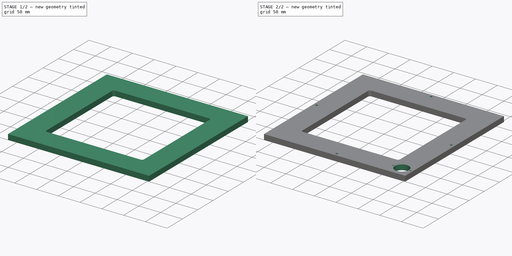
[diagram: build sequence overview — one tinted view per stage of 2, left to right]
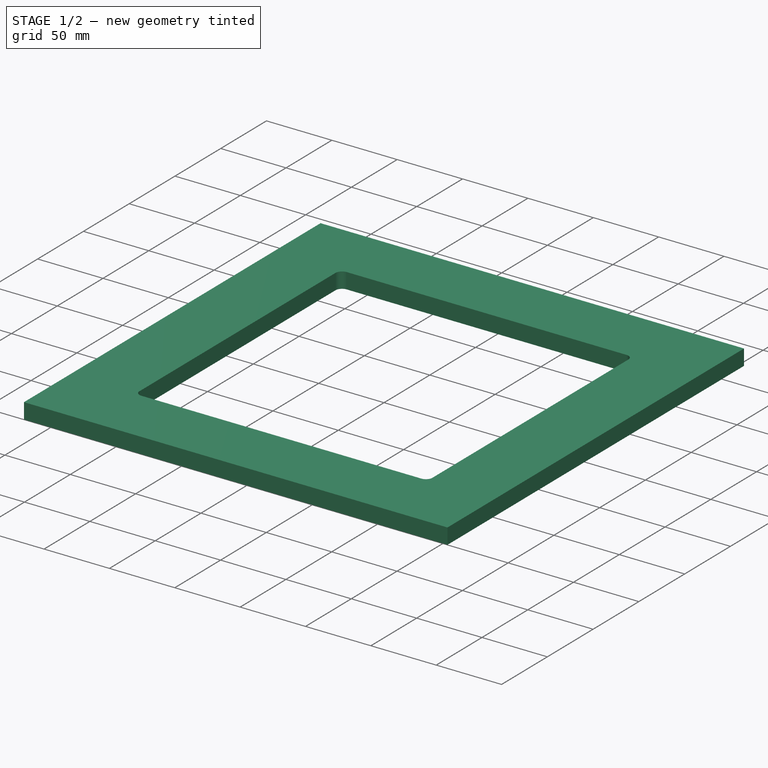
[diagram: stage 1 of 2 — iso view after this stage's code; geometry added in this stage tinted green]
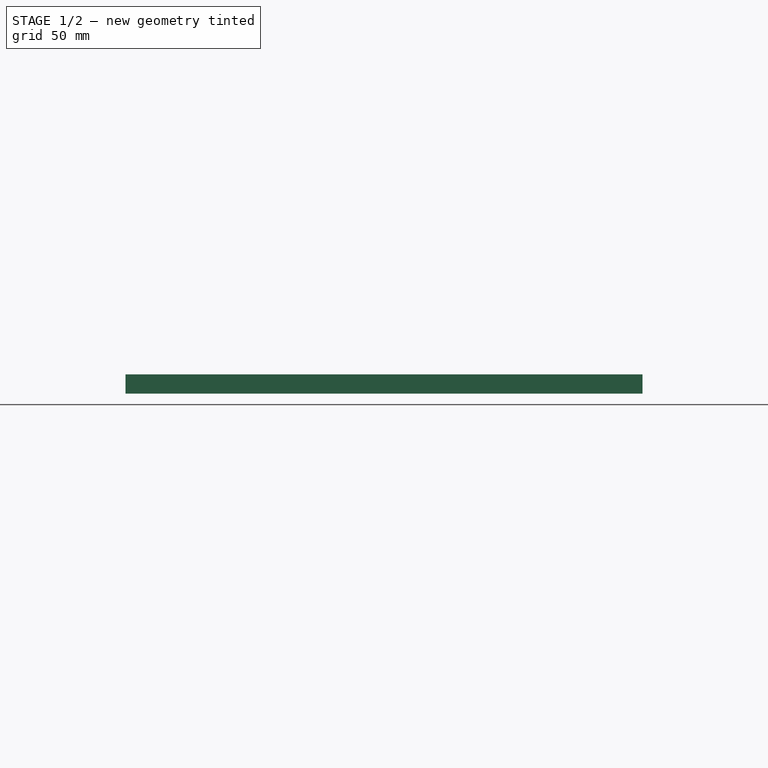
[diagram: stage 1 of 2 — front view after this stage's code; geometry added in this stage tinted green]
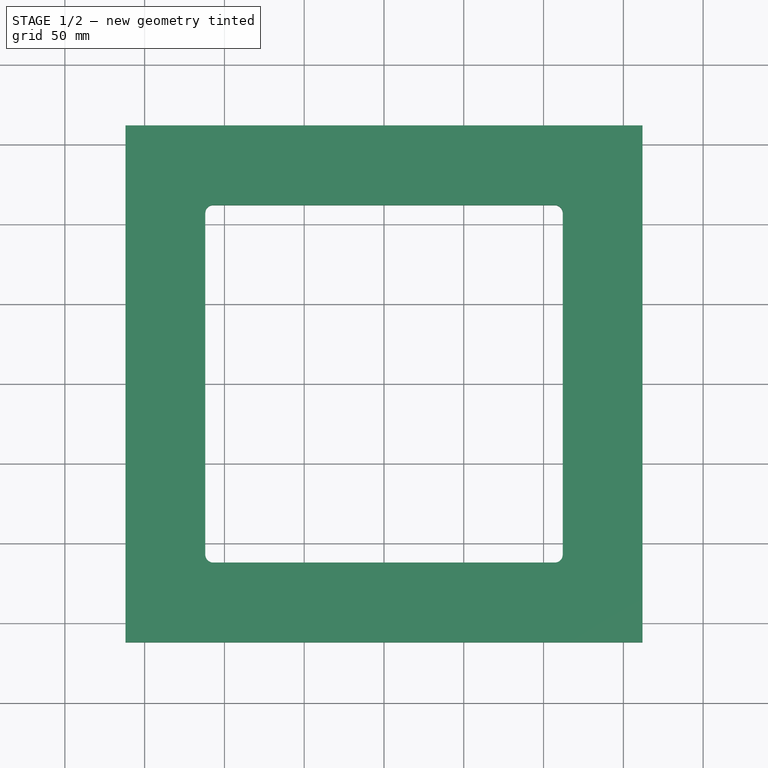
[diagram: stage 1 of 2 — top view after this stage's code; geometry added in this stage tinted green]
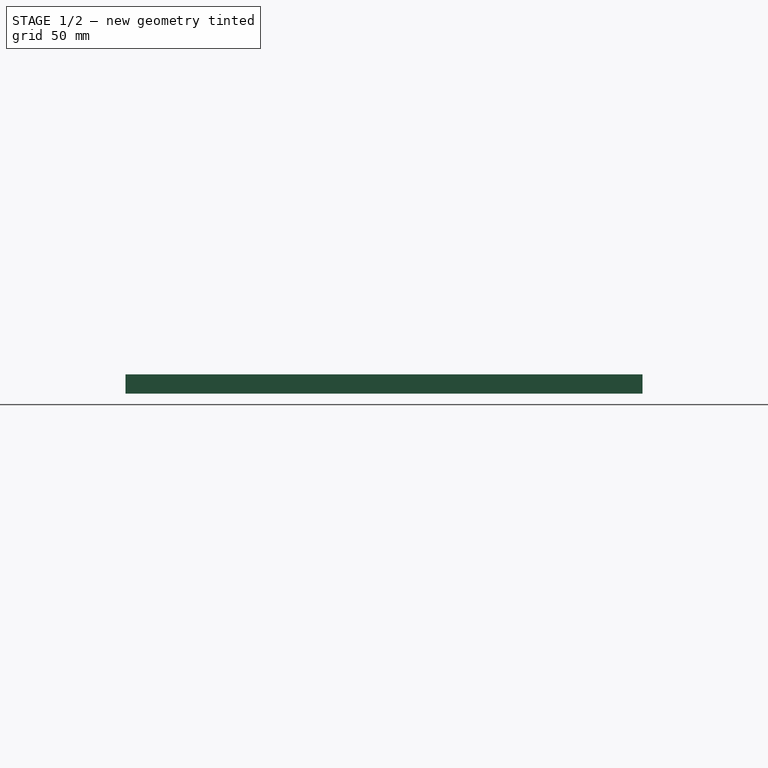
[diagram: stage 1 of 2 — right view after this stage's code; geometry added in this stage tinted green]
FCSTD DOCUMENT  (FreeCAD 0.17R13519 (Git))
Label: Gehaeuse - Deckel
License: All rights reserved
LicenseURL: http://de.wikipedia.org/wiki/Alle_Rechte_vorbehalten
objects: Sketcher::SketchObject×4, PartDesign::Pocket×3, PartDesign::Pad×1
note: 12 computed .brp shape members not serialized (recipe doc carries the construction recipe); baked Part::Feature solids carry a one-line shape summary decoded from their .brp

FEATURE [Sketcher::SketchObject] Sketch
  MapMode = 5
  sketch-geometry (4):
    g0: LineSegment StartX=-162 StartY=162 StartZ=0 EndX=162 EndY=162 EndZ=0
    g1: LineSegment StartX=162 StartY=162 StartZ=0 EndX=162 EndY=-162 EndZ=0
    g2: LineSegment StartX=162 StartY=-162 StartZ=0 EndX=-162 EndY=-162 EndZ=0
    g3: LineSegment StartX=-162 StartY=-162 StartZ=0 EndX=-162 EndY=162 EndZ=0
  constraints (12):
    c: Coincident(g0,g1)
    c: Coincident(g1,g2)
    c: Coincident(g2,g3)
    c: Coincident(g3,g0)
    c: Horizontal(g0)
    c: Horizontal(g2)
    c: Vertical(g1)
    c: Vertical(g3)
    c: Symmetric(g1,g0,g-1)
    c: Symmetric(g0,g0,g-2)
    c: Equal(g0,g1)
    c: DistanceY(g1) = -324
FEATURE [PartDesign::Pad] Pad
  Length = 12
  Length2 = 100
  Profile = -> Sketch
  Type = 0
FEATURE [Sketcher::SketchObject] Sketch001
  ExternalGeometry = -> [Pad]
  MapMode = 5
  Placement = pos=(0,0,12) rot=(0,0,1;0rad)
  Support = -> [Pad]
  sketch-geometry (16):
    g0: LineSegment [constr] StartX=-112 StartY=112 StartZ=0 EndX=112 EndY=112 EndZ=0
    g1: LineSegment [constr] StartX=112 StartY=112 StartZ=0 EndX=112 EndY=-112 EndZ=0
    g2: LineSegment [constr] StartX=112 StartY=-112 StartZ=0 EndX=-112 EndY=-112 EndZ=0
    g3: LineSegment [constr] StartX=-112 StartY=-112 StartZ=0 EndX=-112 EndY=112 EndZ=0
    g4: LineSegment [constr] StartX=-107 StartY=107 StartZ=0 EndX=107 EndY=107 EndZ=0
    g5: LineSegment [constr] StartX=107 StartY=107 StartZ=0 EndX=107 EndY=-107 EndZ=0
    g6: LineSegment [constr] StartX=107 StartY=-107 StartZ=0 EndX=-107 EndY=-107 EndZ=0
    g7: LineSegment [constr] StartX=-107 StartY=-107 StartZ=0 EndX=-107 EndY=107 EndZ=0
    g8: LineSegment StartX=-112 StartY=107 StartZ=0 EndX=-112 EndY=-107 EndZ=0
    g9: LineSegment StartX=112 StartY=107 StartZ=0 EndX=112 EndY=-107 EndZ=0
    g10: LineSegment StartX=-107 StartY=112 StartZ=0 EndX=107 EndY=112 EndZ=0
    g11: LineSegment StartX=-107 StartY=-112 StartZ=0 EndX=107 EndY=-112 EndZ=0
    g12: ArcOfCircle CenterX=-107 CenterY=107 CenterZ=0 NormalX=0 NormalY=0 NormalZ=1 AngleXU=0 Radius=5 StartAngle=1.5708 EndAngle=3.14159
    g13: ArcOfCircle CenterX=107 CenterY=107 CenterZ=0 NormalX=0 NormalY=0 NormalZ=1 AngleXU=0 Radius=5 StartAngle=1.81589e-06 EndAngle=1.5708
    g14: ArcOfCircle CenterX=-107 CenterY=-107 CenterZ=0 NormalX=0 NormalY=0 NormalZ=1 AngleXU=0 Radius=5 StartAngle=3.14159 EndAngle=4.71239
    g15: ArcOfCircle CenterX=107 CenterY=-107 CenterZ=0 NormalX=0 NormalY=0 NormalZ=1 AngleXU=0 Radius=5 StartAngle=4.71239 EndAngle=6.28319
  constraints (49):
    c: Coincident(g0,g1)
    c: Coincident(g1,g2)
    c: Coincident(g2,g3)
    c: Coincident(g3,g0)
    c: Horizontal(g0)
    c: Horizontal(g2)
    c: Vertical(g1)
    c: Vertical(g3)
    c: Symmetric(g1,g2,g-2)
    c: Equal(g0,g1)
    c: Symmetric(g1,g0,g-1)
    c: DistanceX(g-3,g0) = -50
    c: Coincident(g4,g5)
    c: Coincident(g5,g6)
    c: Coincident(g6,g7)
    c: Coincident(g7,g4)
    c: Horizontal(g4)
    c: Horizontal(g6)
    c: Vertical(g5)
    c: Vertical(g7)
    c: Symmetric(g5,g6,g-2)
    c: Symmetric(g4,g5,g-1)
    c: Equal(g4,g5)
    c: Vertical(g8)
    c: Vertical(g9)
    c: Horizontal(g10)
    c: Horizontal(g11)
    c: Equal(g11,g10)
    c: Equal(g9,g8)
    c: Coincident(g12,g4)
    c: Coincident(g12,g8)
    c: Coincident(g12,g10)
    c: Coincident(g13,g4)
    c: Coincident(g13,g10)
    c: Coincident(g13,g9)
    c: Coincident(g14,g6)
    c: Coincident(g14,g8)
    c: Coincident(g14,g11)
    c: Coincident(g15,g11)
    c: Coincident(g15,g9)
    c: Radius(g14) = 5
    c: Equal(g14,g12)
    c: Equal(g14,g13)
    c: Equal(g14,g15)
    c: Tangent(g11,g15)
    c: Tangent(g15,g9)
    c: Tangent(g14,g11)
    c: Tangent(g14,g8)
    c: PointOnObject(g11,g2)
FEATURE [PartDesign::Pocket] Pocket
  Length = 5
  Length2 = 100
  Profile = -> Sketch001
  Type = 1
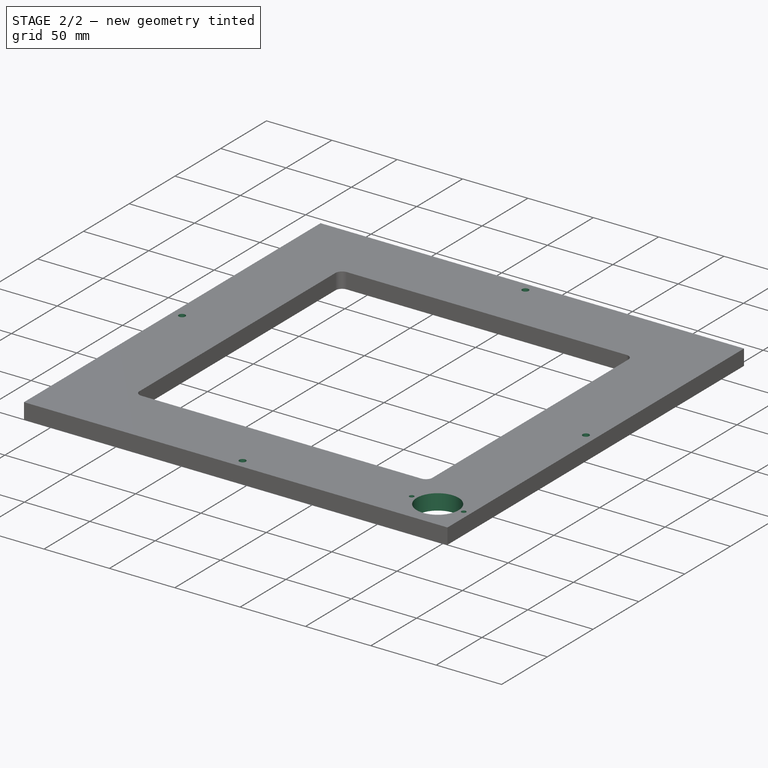
[diagram: stage 2 of 2 — iso view after this stage's code; geometry added in this stage tinted green]
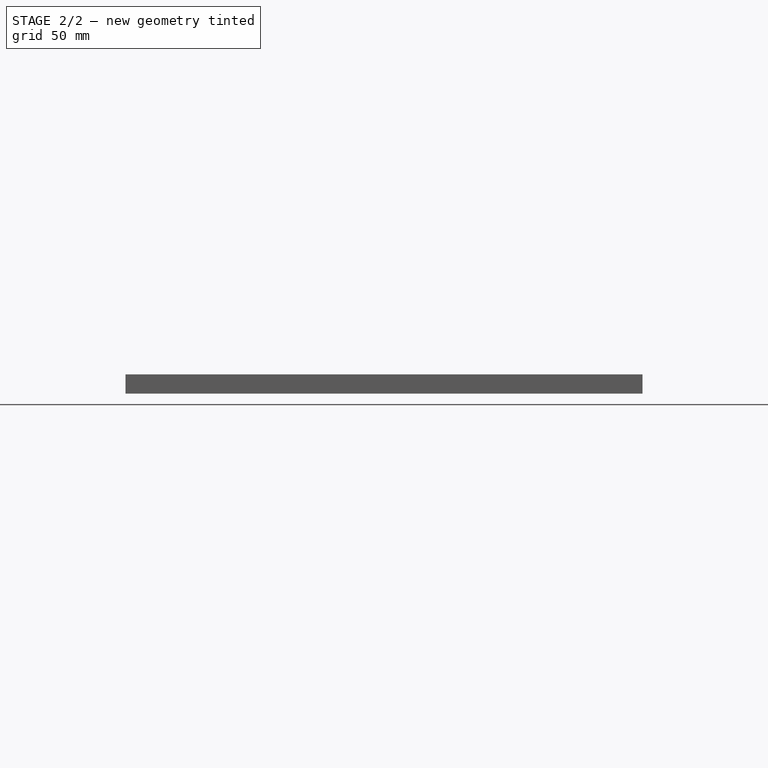
[diagram: stage 2 of 2 — front view after this stage's code; geometry added in this stage tinted green]
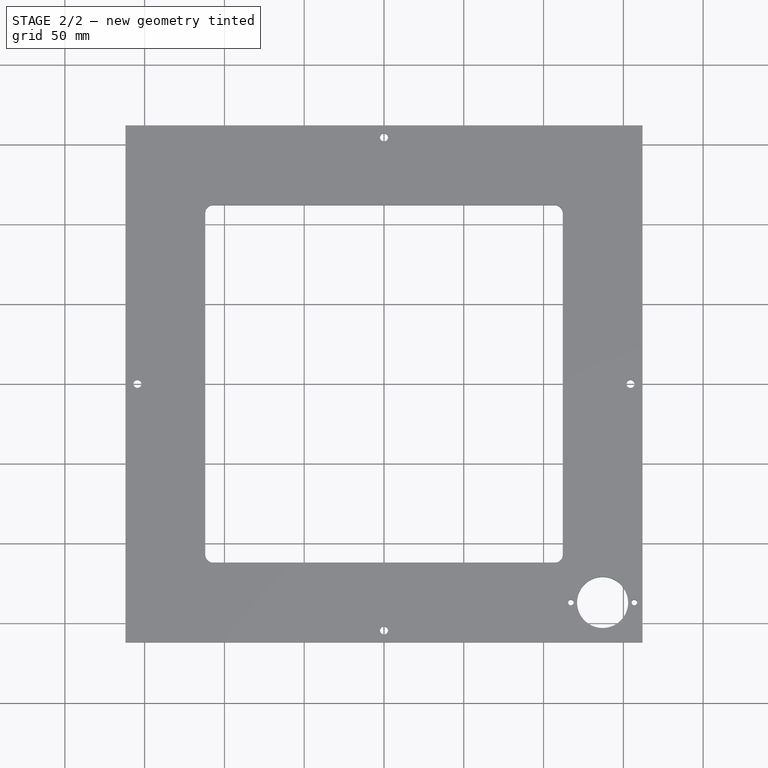
[diagram: stage 2 of 2 — top view after this stage's code; geometry added in this stage tinted green]
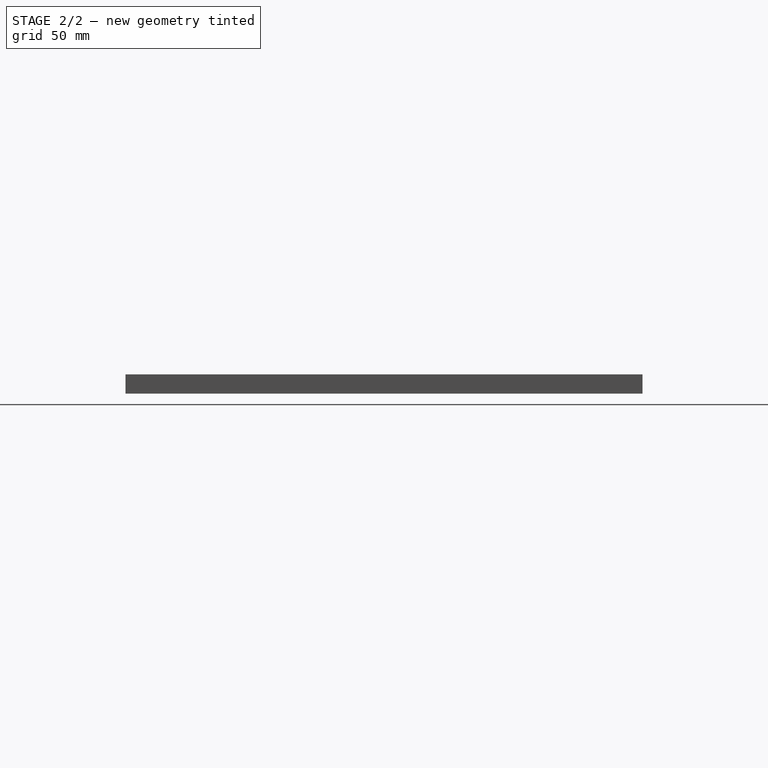
[diagram: stage 2 of 2 — right view after this stage's code; geometry added in this stage tinted green]
FEATURE [Sketcher::SketchObject] Sketch002
  ExternalGeometry = -> [Pocket]
  MapMode = 5
  Placement = pos=(0,0,12) rot=(0,0,1;0rad)
  Support = -> [Pocket]
  sketch-geometry (8):
    g0: LineSegment [constr] StartX=-154.5 StartY=0 StartZ=0 EndX=0 EndY=154.5 EndZ=0
    g1: LineSegment [constr] StartX=0 StartY=154.5 StartZ=0 EndX=154.5 EndY=0 EndZ=0
    g2: LineSegment [constr] StartX=154.5 StartY=0 StartZ=0 EndX=0 EndY=-154.5 EndZ=0
    g3: LineSegment [constr] StartX=0 StartY=-154.5 StartZ=0 EndX=-154.5 EndY=0 EndZ=0
    g4: Circle CenterX=0 CenterY=154.5 CenterZ=0 NormalX=0 NormalY=0 NormalZ=1 AngleXU=0 Radius=2.5
    g5: Circle CenterX=-154.5 CenterY=0 CenterZ=0 NormalX=0 NormalY=0 NormalZ=1 AngleXU=0 Radius=2.5
    g6: Circle CenterX=154.5 CenterY=0 CenterZ=0 NormalX=0 NormalY=0 NormalZ=1 AngleXU=0 Radius=2.5
    g7: Circle CenterX=0 CenterY=-154.5 CenterZ=0 NormalX=0 NormalY=0 NormalZ=1 AngleXU=0 Radius=2.5
  constraints (22):
    c: PointOnObject(g0,g-1)
    c: PointOnObject(g0,g-2)
    c: Coincident(g0,g1)
    c: PointOnObject(g1,g-1)
    c: Coincident(g1,g2)
    c: PointOnObject(g2,g-2)
    c: Coincident(g2,g3)
    c: Coincident(g3,g0)
    c: Equal(g2,g1)
    c: Equal(g1,g0)
    c: Equal(g0,g3)
    c: Parallel(g3,g1)
    c: Perpendicular(g1,g2)
    c: DistanceX(g0,g-3) = -7.5
    c: Coincident(g4,g0)
    c: Coincident(g5,g0)
    c: Coincident(g6,g1)
    c: Coincident(g7,g2)
    c: Radius(g7) = 2.5
    c: Equal(g7,g5)
    c: Equal(g7,g4)
    c: Equal(g7,g6)
FEATURE [PartDesign::Pocket] Pocket001
  Length = 5
  Length2 = 100
  Profile = -> Sketch002
  Type = 1
FEATURE [Sketcher::SketchObject] Sketch003
  ExternalGeometry = -> [Pocket001]
  MapMode = 5
  Placement = pos=(0,0,12) rot=(0,0,1;0rad)
  Support = -> [Pocket001]
  sketch-geometry (9):
    g0: LineSegment [constr] StartX=107 StartY=-112 StartZ=0 EndX=112 EndY=-112 EndZ=0
    g1: LineSegment [constr] StartX=112 StartY=-107 StartZ=0 EndX=112 EndY=-112 EndZ=0
    g2: LineSegment [constr] StartX=112 StartY=-112 StartZ=0 EndX=137 EndY=-137 EndZ=0
    g3: LineSegment [constr] StartX=137 StartY=-137 StartZ=0 EndX=162 EndY=-162 EndZ=0
    g4: Circle CenterX=137 CenterY=-137 CenterZ=0 NormalX=0 NormalY=0 NormalZ=1 AngleXU=0 Radius=16
    g5: Circle CenterX=117.1 CenterY=-137 CenterZ=0 NormalX=0 NormalY=0 NormalZ=1 AngleXU=0 Radius=1.75
    g6: LineSegment [constr] StartX=117.1 StartY=-137 StartZ=0 EndX=137 EndY=-137 EndZ=0
    g7: LineSegment [constr] StartX=137 StartY=-137 StartZ=0 EndX=156.9 EndY=-137 EndZ=0
    g8: Circle CenterX=156.9 CenterY=-137 CenterZ=0 NormalX=0 NormalY=0 NormalZ=1 AngleXU=0 Radius=1.75
  constraints (22):
    c: Coincident(g0,g-5)
    c: Horizontal(g0)
    c: Coincident(g1,g-3)
    c: Coincident(g1,g0)
    c: Vertical(g1)
    c: Coincident(g0,g2)
    c: Coincident(g2,g3)
    c: Coincident(g3,g-6)
    c: Equal(g3,g2)
    c: Parallel(g3,g2)
    c: Coincident(g4,g2)
    c: Radius(g4) = 16
    c: DistanceX(g2,g5) = -19.9
    c: Radius(g5) = 1.75
    c: Coincident(g6,g5)
    c: Horizontal(g6)
    c: Coincident(g6,g7)
    c: Horizontal(g7)
    c: Coincident(g8,g7)
    c: Equal(g8,g5)
    c: Equal(g6,g7)
    c: Coincident(g6,g2)
FEATURE [PartDesign::Pocket] Pocket002
  Length = 5
  Length2 = 100
  Profile = -> Sketch003
  Type = 1
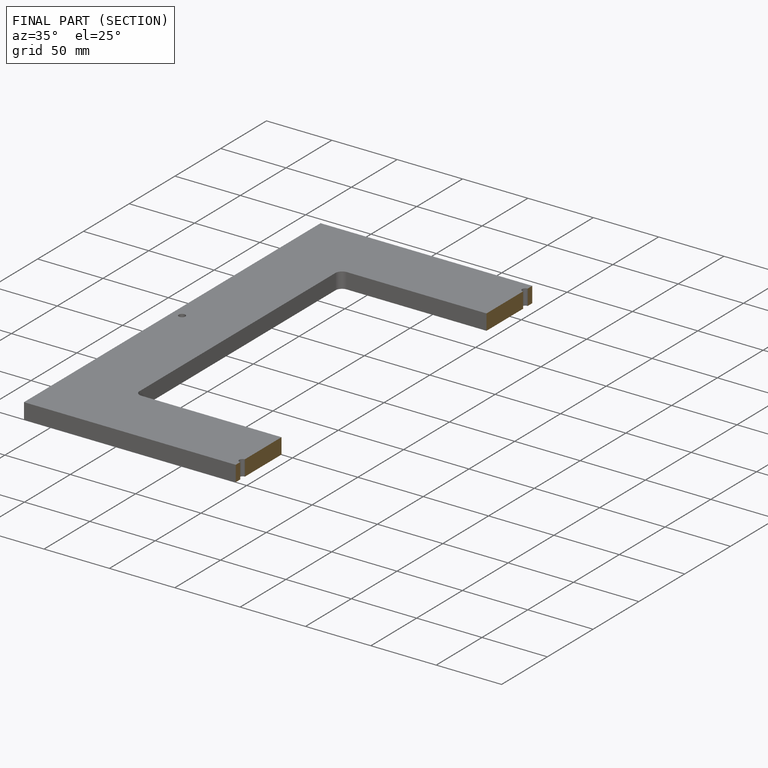
[diagram: finished part — half-section view (interior)]
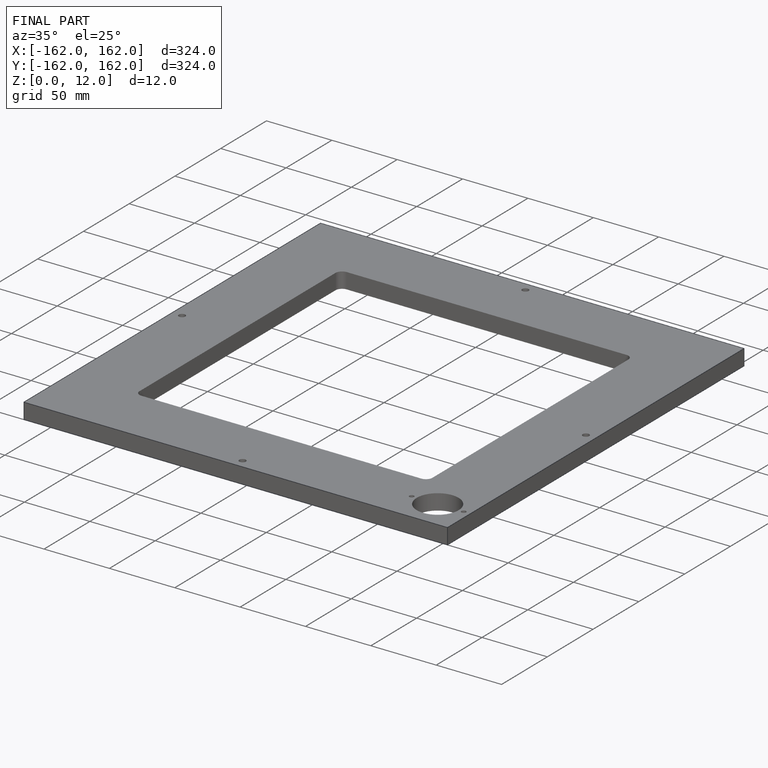
[diagram: finished part — iso view with bounding-box wireframe]
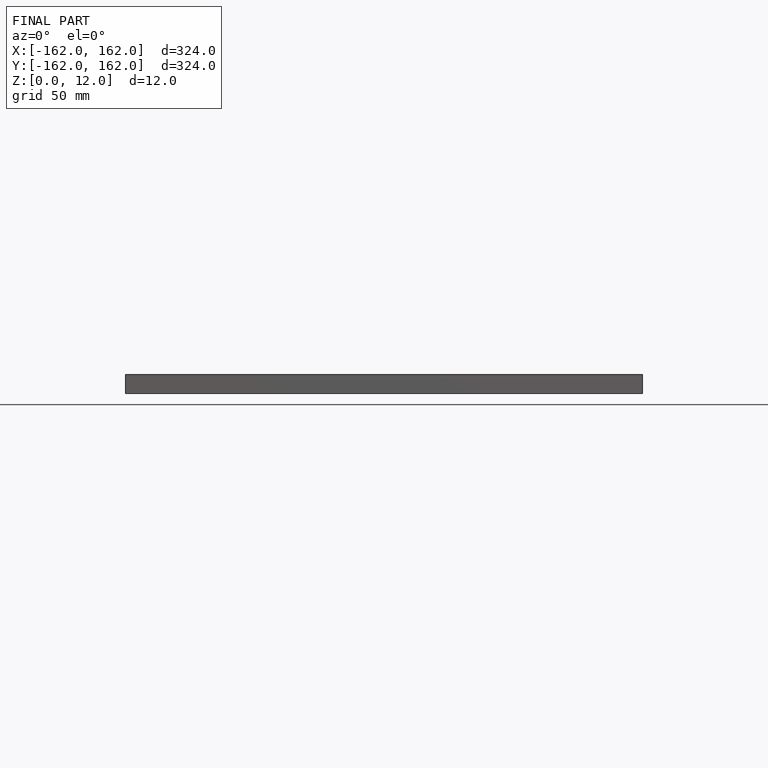
[diagram: finished part — front view with bounding-box wireframe]
